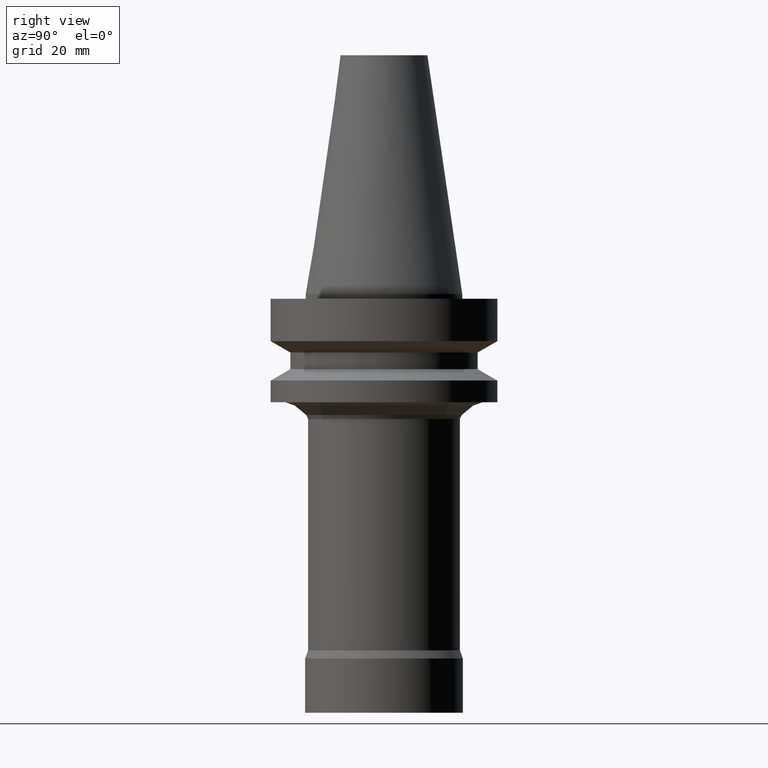
[diagram: clean part render]
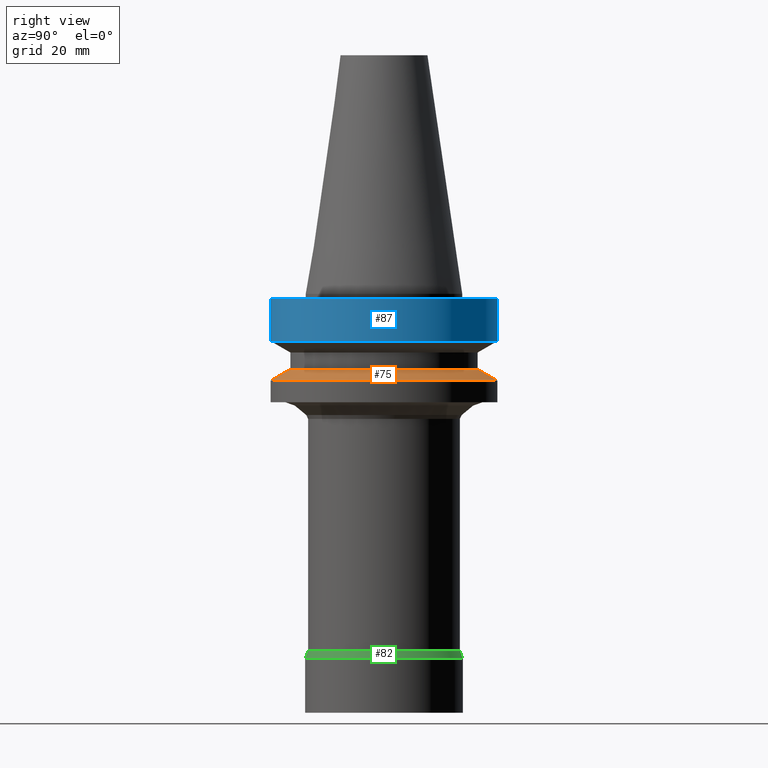
[diagram: same view with three faces highlighted in distinct colors, each labeled with its STEP entity id]
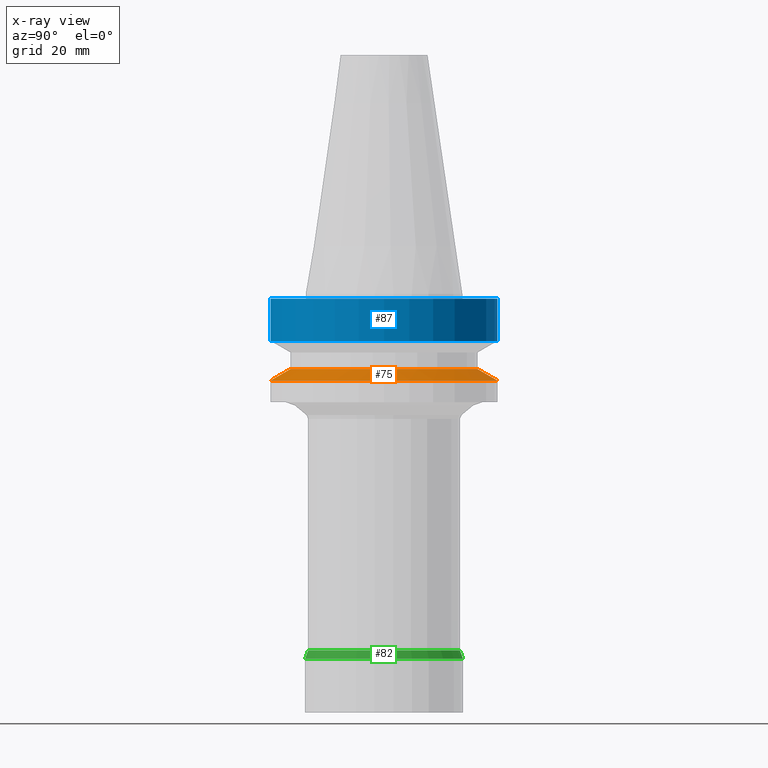
[diagram: x-ray of the same camera — body ghosted, the three highlighted faces saturated]
A machine part, right view with three faces highlighted in distinct colors.
The next image is the same camera in x-ray (body ghosted, the three faces saturated) — at least one of them is partly hidden behind the body in this view.
Their STEP definitions:

[orange] entity #75 — the highlighted conical surface has half-angle 60 deg.
#75=ADVANCED_FACE('',(#93,#94),#95,.T.);
#93=FACE_BOUND('',#142,.T.);
#94=FACE_BOUND('',#143,.T.);
#95=CONICAL_SURFACE('',#144,21.0,1.04719755058882);
#142=EDGE_LOOP('',(#191));
#143=EDGE_LOOP('',(#192));
#144=AXIS2_PLACEMENT_3D('',#193,#194,#195);
#191=ORIENTED_EDGE('',*,*,#274,.F.);
#192=ORIENTED_EDGE('',*,*,#275,.T.);
#193=CARTESIAN_POINT('',(1.00698416723543E-015,2.01396833447087E-015,-16.44529946));
#194=DIRECTION('',(6.12323399573677E-017,1.22464679914735E-016,-1.0));
#195=DIRECTION('',(-1.23259516440783E-032,1.0,1.22464679914735E-016));
#274=EDGE_CURVE('',#290,#290,#291,.T.);
#275=EDGE_CURVE('',#292,#292,#293,.T.);
#290=VERTEX_POINT('',#322);
#291=CIRCLE('',#323,23.0);
#292=VERTEX_POINT('',#324);
#293=CIRCLE('',#325,19.0);
#322=CARTESIAN_POINT('',(1.07768918324967E-015,23.0,-17.6));
#323=AXIS2_PLACEMENT_3D('',#354,#355,#356);
#324=CARTESIAN_POINT('',(9.36279151221199E-016,19.0,-15.29059892));
#325=AXIS2_PLACEMENT_3D('',#357,#358,#359);
#354=CARTESIAN_POINT('',(1.07768918324967E-015,2.15537836649934E-015,-17.6));
#355=DIRECTION('',(6.12323399573677E-017,1.22464679914735E-016,-1.0));
#356=DIRECTION('',(-1.23259516440783E-032,1.0,1.22464679914735E-016));
#357=CARTESIAN_POINT('',(9.36279151221199E-016,1.8725583024424E-015,-15.29059892));
#358=DIRECTION('',(6.12323399573677E-017,1.22464679914735E-016,-1.0));
#359=DIRECTION('',(-1.23259516440783E-032,1.0,1.22464679914735E-016));

[blue] entity #87 — the highlighted cylindrical surface (bore or boss wall) has radius 23 mm, axis along (-0, -0, 1).
#87=ADVANCED_FACE('',(#128,#129),#130,.T.);
#128=FACE_BOUND('',#177,.T.);
#129=FACE_BOUND('',#178,.T.);
#130=CYLINDRICAL_SURFACE('',#179,23.0);
#177=EDGE_LOOP('',(#250));
#178=EDGE_LOOP('',(#251));
#179=AXIS2_PLACEMENT_3D('',#252,#253,#254);
#250=ORIENTED_EDGE('',*,*,#287,.F.);
#251=ORIENTED_EDGE('',*,*,#285,.T.);
#252=CARTESIAN_POINT('',(3.24531401774049E-016,6.49062803548097E-016,-5.3));
#253=DIRECTION('',(-6.12323399573677E-017,-1.22464679914735E-016,1.0));
#254=DIRECTION('',(-1.23259516440783E-032,1.0,1.22464679914735E-016));
#285=EDGE_CURVE('',#312,#312,#313,.T.);
#287=EDGE_CURVE('',#316,#316,#317,.T.);
#312=VERTEX_POINT('',#344);
#313=CIRCLE('',#345,23.0);
#316=VERTEX_POINT('',#348);
#317=CIRCLE('',#349,23.0);
#344=CARTESIAN_POINT('',(6.12323399573674E-017,23.0,-0.999999999999997));
#345=AXIS2_PLACEMENT_3D('',#387,#388,#389);
#348=CARTESIAN_POINT('',(5.87830463590729E-016,23.0,-9.6));
#349=AXIS2_PLACEMENT_3D('',#393,#394,#395);
#387=CARTESIAN_POINT('',(6.12323399573677E-017,1.22464679914735E-016,-1.0));
#388=DIRECTION('',(6.12323399573677E-017,1.22464679914735E-016,-1.0));
#389=DIRECTION('',(-1.23259516440783E-032,1.0,1.22464679914735E-016));
#393=CARTESIAN_POINT('',(5.8783046359073E-016,1.17566092718146E-015,-9.6));
#394=DIRECTION('',(6.12323399573677E-017,1.22464679914735E-016,-1.0));
#395=DIRECTION('',(-1.23259516440783E-032,1.0,1.22464679914735E-016));

[green] entity #82 — the highlighted conical surface has half-angle 20.023 deg.
#82=ADVANCED_FACE('',(#114,#115),#116,.T.);
#114=FACE_BOUND('',#163,.T.);
#115=FACE_BOUND('',#164,.T.);
#116=CONICAL_SURFACE('',#165,15.7,0.34947109715875);
#163=EDGE_LOOP('',(#226));
#164=EDGE_LOOP('',(#227));
#165=AXIS2_PLACEMENT_3D('',#228,#229,#230);
#226=ORIENTED_EDGE('',*,*,#282,.F.);
#227=ORIENTED_EDGE('',*,*,#281,.T.);
#228=CARTESIAN_POINT('',(4.48078638291969E-015,8.96157276583938E-015,-73.17679491));
#229=DIRECTION('',(6.12323399573676E-017,1.22464679914735E-016,-1.0));
#230=DIRECTION('',(-1.23259516440783E-032,1.0,1.22464679914735E-016));
#281=EDGE_CURVE('',#304,#304,#305,.T.);
#282=EDGE_CURVE('',#306,#306,#307,.T.);
#304=VERTEX_POINT('',#336);
#305=CIRCLE('',#337,15.4);
#306=VERTEX_POINT('',#338);
#307=CIRCLE('',#339,16.0);
#336=CARTESIAN_POINT('',(4.43037960899417E-015,15.4,-72.35358982));
#337=AXIS2_PLACEMENT_3D('',#375,#376,#377);
#338=CARTESIAN_POINT('',(4.53119315684521E-015,16.0,-74.0));
#339=AXIS2_PLACEMENT_3D('',#378,#379,#380);
#375=CARTESIAN_POINT('',(4.43037960899417E-015,8.86075921798835E-015,-72.35358982));
#376=DIRECTION('',(6.12323399573677E-017,1.22464679914735E-016,-1.0));
#377=DIRECTION('',(-1.23259516440783E-032,1.0,1.22464679914735E-016));
#378=CARTESIAN_POINT('',(4.53119315684521E-015,9.06238631369041E-015,-74.0));
#379=DIRECTION('',(6.12323399573677E-017,1.22464679914735E-016,-1.0));
#380=DIRECTION('',(-1.23259516440783E-032,1.0,1.22464679914735E-016));